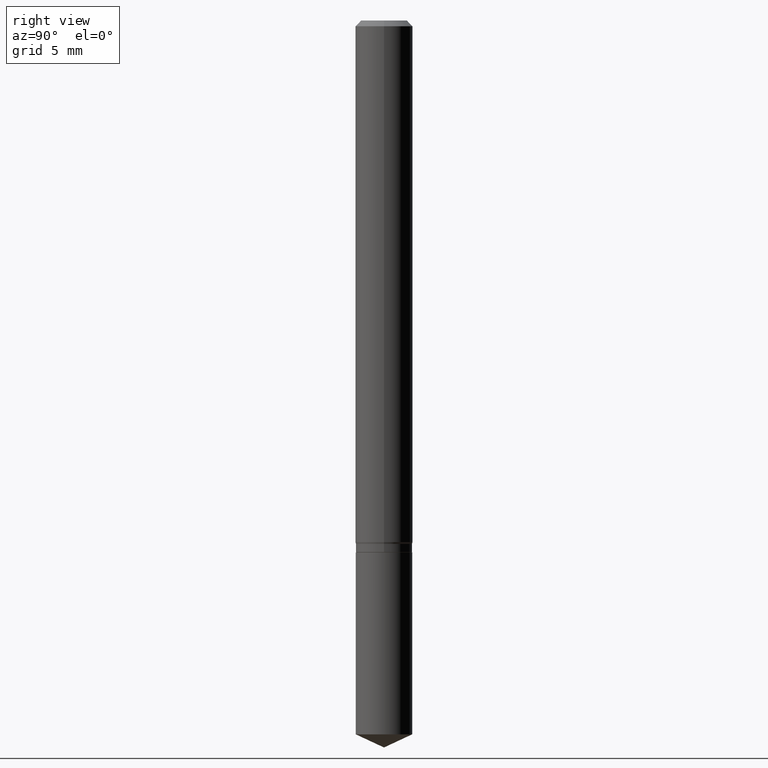
[diagram: clean part render]
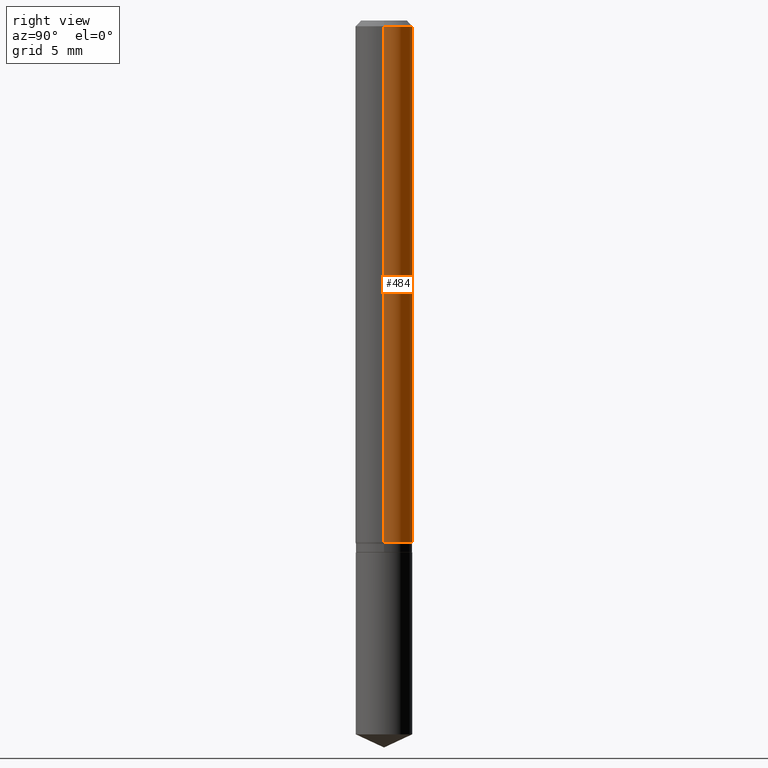
[diagram: same view with one face highlighted and labeled with its STEP entity id]
A machine part, right view. The second image highlights one B-rep face of the part: STEP entity #484.
In plain terms, the highlighted cylindrical surface (edge-blend (fillet) strip) has radius 1.4999 mm, axis along (-0, 0, 1).
Its self-contained STEP definition (entity closure, byte-faithful):
#14 = DIRECTION ( 'NONE',  ( -2.445468806185136877E-29, 3.491481338843145188E-15, 1.000000000000000000 ) ) ;
#15 = ORIENTED_EDGE ( 'NONE', *, *, #481, .T. ) ;
#16 = CARTESIAN_POINT ( 'NONE',  ( 0.05904999999999999832, -4.535783407291118600E-16, -0.01181000000000006350 ) ) ;
#32 = EDGE_CURVE ( 'NONE', #363, #370, #137, .T. ) ;
#40 = DIRECTION ( 'NONE',  ( 1.000000000000000000, -6.982962677686266711E-15, 0.000000000000000000 ) ) ;
#54 = DIRECTION ( 'NONE',  ( 1.000000000000000000, -6.982962677686265133E-15, 0.000000000000000000 ) ) ;
#61 = ORIENTED_EDGE ( 'NONE', *, *, #32, .F. ) ;
#69 = EDGE_LOOP ( 'NONE', ( #226, #15, #61, #433 ) ) ;
#71 = VERTEX_POINT ( 'NONE', #453 ) ;
#74 = CYLINDRICAL_SURFACE ( 'NONE', #469, 0.05905000000000006771 ) ;
#102 = FACE_OUTER_BOUND ( 'NONE', #69, .T. ) ;
#111 = DIRECTION ( 'NONE',  ( -2.445468806185136597E-29, 3.491481338843145583E-15, 1.000000000000000000 ) ) ;
#123 = CARTESIAN_POINT ( 'NONE',  ( -0.05904999999999999832, -1.474863793998382890E-15, -0.01181000000000006350 ) ) ;
#137 = CIRCLE ( 'NONE', #159, 0.05904999999999999832 ) ;
#138 = VECTOR ( 'NONE', #295, 39.37007874015748143 ) ;
#152 = LINE ( 'NONE', #332, #138 ) ;
#159 = AXIS2_PLACEMENT_3D ( 'NONE', #191, #111, #40 ) ;
#172 = DIRECTION ( 'NONE',  ( -2.445468806185136597E-29, 3.491481338843145583E-15, 1.000000000000000000 ) ) ;
#191 = CARTESIAN_POINT ( 'NONE',  ( 2.888098660104662014E-31, -4.123439461173777182E-17, -0.01181000000000006350 ) ) ;
#216 = EDGE_CURVE ( 'NONE', #71, #363, #277, .T. ) ;
#219 = CARTESIAN_POINT ( 'NONE',  ( 0.05905000000000006771, -4.123439461173745257E-16, 2.879382386107503723E-30 ) ) ;
#225 = CARTESIAN_POINT ( 'NONE',  ( -0.05905000000000013016, -3.328068678851369121E-15, -1.073367949192430615 ) ) ;
#226 = ORIENTED_EDGE ( 'NONE', *, *, #361, .T. ) ;
#227 = DIRECTION ( 'NONE',  ( 1.000000000000000000, -6.982962677686266711E-15, 4.876176775795936353E-29 ) ) ;
#234 = CARTESIAN_POINT ( 'NONE',  ( 0.000000000000000000, 0.000000000000000000, 0.000000000000000000 ) ) ;
#277 = LINE ( 'NONE', #219, #414 ) ;
#291 = VERTEX_POINT ( 'NONE', #225 ) ;
#295 = DIRECTION ( 'NONE',  ( -2.445468806185136877E-29, 3.491481338843145188E-15, 1.000000000000000000 ) ) ;
#306 = CIRCLE ( 'NONE', #413, 0.05905000000000013016 ) ;
#332 = CARTESIAN_POINT ( 'NONE',  ( -0.05905000000000006771, 4.195754854663396409E-16, -2.904631170795525045E-30 ) ) ;
#349 = CARTESIAN_POINT ( 'NONE',  ( 2.624887837309001649E-29, -3.747644164317709009E-15, -1.073367949192430615 ) ) ;
#361 = EDGE_CURVE ( 'NONE', #71, #291, #306, .T. ) ;
#363 = VERTEX_POINT ( 'NONE', #16 ) ;
#370 = VERTEX_POINT ( 'NONE', #123 ) ;
#403 = DIRECTION ( 'NONE',  ( -2.445468806185136597E-29, 3.491481338843145583E-15, 1.000000000000000000 ) ) ;
#413 = AXIS2_PLACEMENT_3D ( 'NONE', #349, #172, #54 ) ;
#414 = VECTOR ( 'NONE', #14, 39.37007874015748143 ) ;
#433 = ORIENTED_EDGE ( 'NONE', *, *, #216, .F. ) ;
#453 = CARTESIAN_POINT ( 'NONE',  ( 0.05905000000000013016, -4.159988110435083929E-15, -1.073367949192430615 ) ) ;
#469 = AXIS2_PLACEMENT_3D ( 'NONE', #234, #403, #227 ) ;
#481 = EDGE_CURVE ( 'NONE', #291, #370, #152, .T. ) ;
#484 = ADVANCED_FACE ( 'NONE', ( #102 ), #74, .T. ) ;